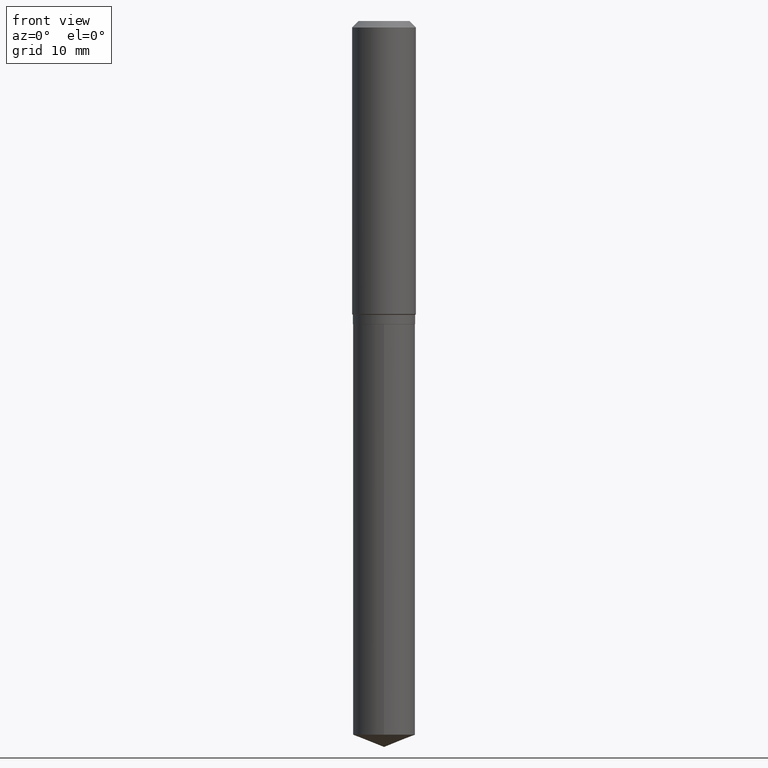
[diagram: clean part render]
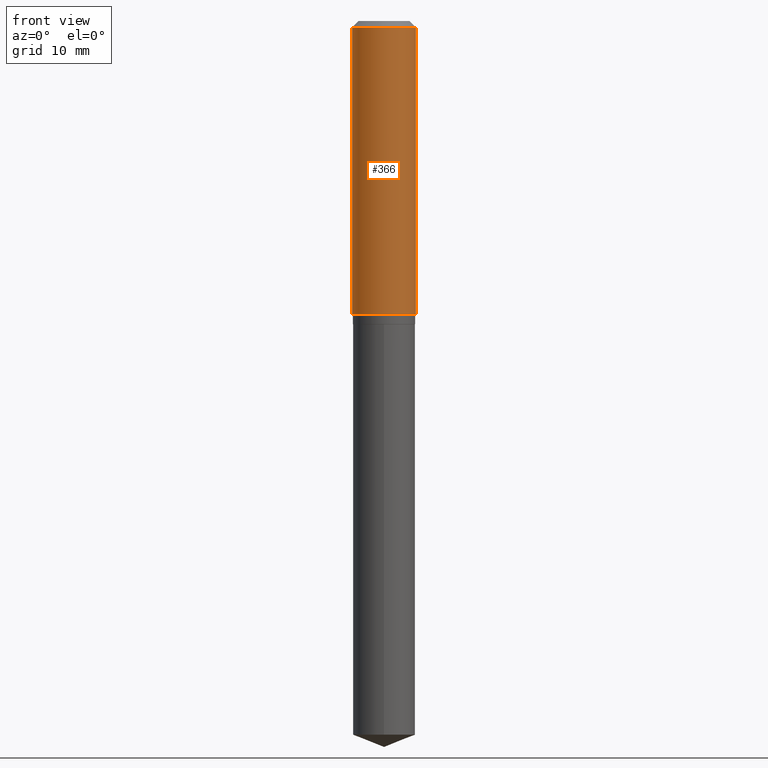
[diagram: same view with one face highlighted and labeled with its STEP entity id]
A machine part, front view. The second image highlights one B-rep face of the part: STEP entity #366.
In plain terms, the highlighted cylindrical surface (edge-blend (fillet) strip) has radius 4.0005 mm, axis along (-0, 0, 1).
Its self-contained STEP definition (entity closure, byte-faithful):
#2 = ORIENTED_EDGE ( 'NONE', *, *, #449, .F. ) ;
#5 = ORIENTED_EDGE ( 'NONE', *, *, #444, .F. ) ;
#16 = ORIENTED_EDGE ( 'NONE', *, *, #261, .T. ) ;
#46 = DIRECTION ( 'NONE',  ( -2.445468806185136597E-29, 3.491481338843145583E-15, 1.000000000000000000 ) ) ;
#55 = DIRECTION ( 'NONE',  ( -2.445468806185136877E-29, 3.491481338843145188E-15, 1.000000000000000000 ) ) ;
#59 = CARTESIAN_POINT ( 'NONE',  ( 0.1575000000000000011, -1.209798283909146741E-15, -0.03150000000000019451 ) ) ;
#69 = VERTEX_POINT ( 'NONE', #219 ) ;
#85 = DIRECTION ( 'NONE',  ( 1.000000000000000000, -6.982962677686267499E-15, 0.000000000000000000 ) ) ;
#99 = CARTESIAN_POINT ( 'NONE',  ( 0.1575000000000000844, -1.099816621735587677E-15, 7.679978421878603638E-30 ) ) ;
#128 = CARTESIAN_POINT ( 'NONE',  ( 3.536025620303397046E-29, -5.048507441900244569E-15, -1.445949999999999624 ) ) ;
#130 = DIRECTION ( 'NONE',  ( 1.000000000000000000, -6.982962677686267499E-15, 4.876176775795936353E-29 ) ) ;
#132 = CARTESIAN_POINT ( 'NONE',  ( 7.703226739483226971E-31, -1.099816621735597538E-16, -0.03150000000000019451 ) ) ;
#175 = CIRCLE ( 'NONE', #369, 0.1575000000000001676 ) ;
#200 = DIRECTION ( 'NONE',  ( 1.000000000000000000, -6.982962677686265922E-15, 0.000000000000000000 ) ) ;
#219 = CARTESIAN_POINT ( 'NONE',  ( 0.1575000000000001676, -6.148324063635832838E-15, -1.445949999999999624 ) ) ;
#224 = EDGE_CURVE ( 'NONE', #349, #69, #175, .T. ) ;
#234 = DIRECTION ( 'NONE',  ( -2.445468806185136877E-29, 3.491481338843145188E-15, 1.000000000000000000 ) ) ;
#243 = FACE_OUTER_BOUND ( 'NONE', #433, .T. ) ;
#253 = ORIENTED_EDGE ( 'NONE', *, *, #224, .T. ) ;
#258 = VECTOR ( 'NONE', #55, 39.37007874015748143 ) ;
#261 = EDGE_CURVE ( 'NONE', #69, #290, #318, .T. ) ;
#263 = LINE ( 'NONE', #271, #323 ) ;
#271 = CARTESIAN_POINT ( 'NONE',  ( -0.1575000000000000844, 1.119104808822158392E-15, -7.747322767151481189E-30 ) ) ;
#290 = VERTEX_POINT ( 'NONE', #59 ) ;
#295 = AXIS2_PLACEMENT_3D ( 'NONE', #132, #46, #200 ) ;
#298 = DIRECTION ( 'NONE',  ( -2.445468806185136597E-29, 3.491481338843145583E-15, 1.000000000000000000 ) ) ;
#309 = AXIS2_PLACEMENT_3D ( 'NONE', #357, #298, #130 ) ;
#318 = LINE ( 'NONE', #99, #258 ) ;
#323 = VECTOR ( 'NONE', #234, 39.37007874015748143 ) ;
#349 = VERTEX_POINT ( 'NONE', #424 ) ;
#357 = CARTESIAN_POINT ( 'NONE',  ( 0.000000000000000000, 0.000000000000000000, 0.000000000000000000 ) ) ;
#366 = ADVANCED_FACE ( 'NONE', ( #243 ), #389, .T. ) ;
#369 = AXIS2_PLACEMENT_3D ( 'NONE', #128, #418, #85 ) ;
#381 = VERTEX_POINT ( 'NONE', #455 ) ;
#389 = CYLINDRICAL_SURFACE ( 'NONE', #309, 0.1575000000000000844 ) ;
#392 = CIRCLE ( 'NONE', #295, 0.1575000000000000011 ) ;
#418 = DIRECTION ( 'NONE',  ( -2.445468806185136597E-29, 3.491481338843145583E-15, 1.000000000000000000 ) ) ;
#424 = CARTESIAN_POINT ( 'NONE',  ( -0.1575000000000001676, -3.929402633078086177E-15, -1.445949999999999624 ) ) ;
#433 = EDGE_LOOP ( 'NONE', ( #5, #253, #16, #2 ) ) ;
#444 = EDGE_CURVE ( 'NONE', #349, #381, #263, .T. ) ;
#449 = EDGE_CURVE ( 'NONE', #381, #290, #392, .T. ) ;
#455 = CARTESIAN_POINT ( 'NONE',  ( -0.1575000000000000011, -1.460139743214743621E-15, -0.03150000000000019451 ) ) ;